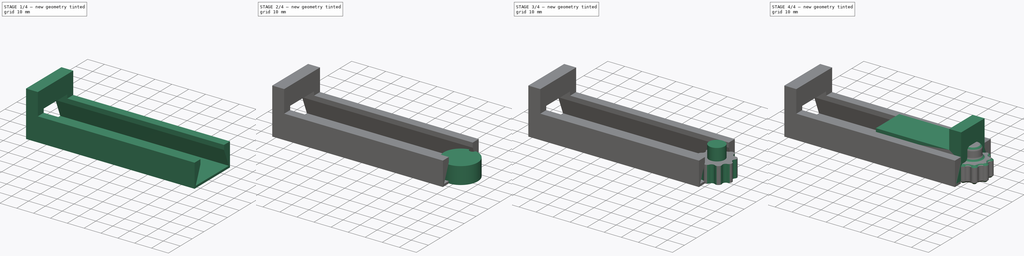
[diagram: build sequence overview — one tinted view per stage of 4, left to right]
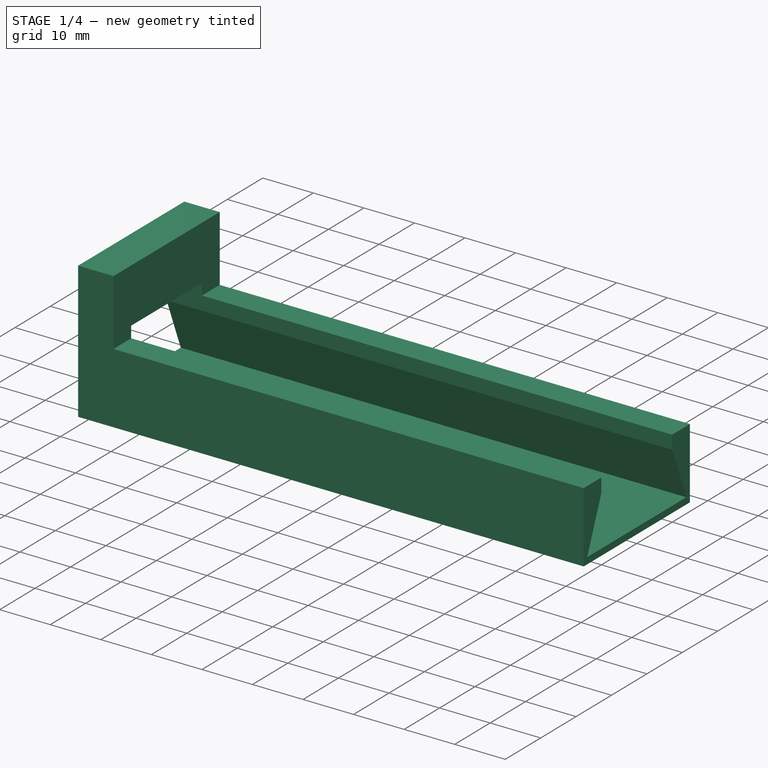
[diagram: stage 1 of 4 — iso view after this stage's code; geometry added in this stage tinted green]
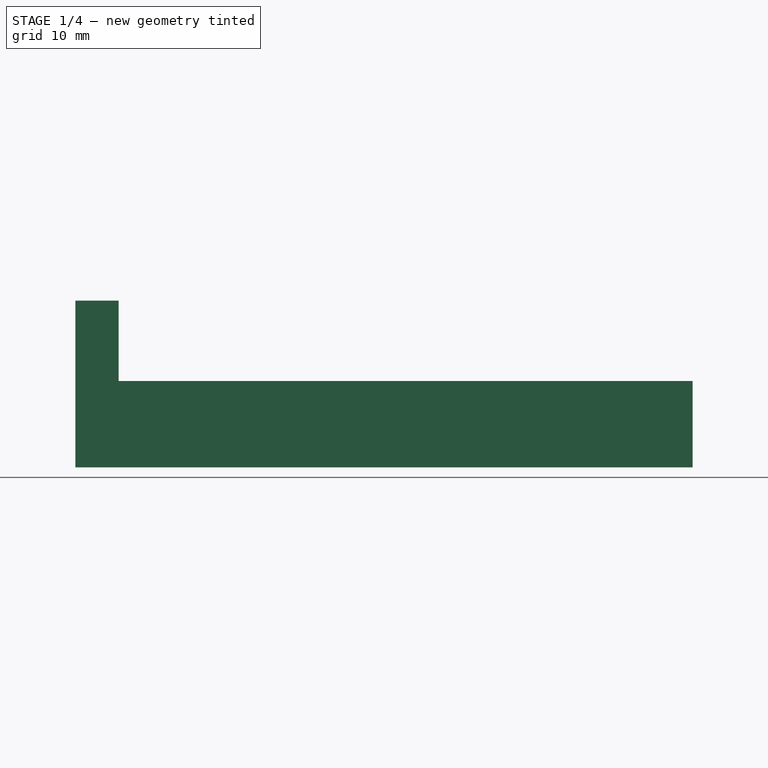
[diagram: stage 1 of 4 — front view after this stage's code; geometry added in this stage tinted green]
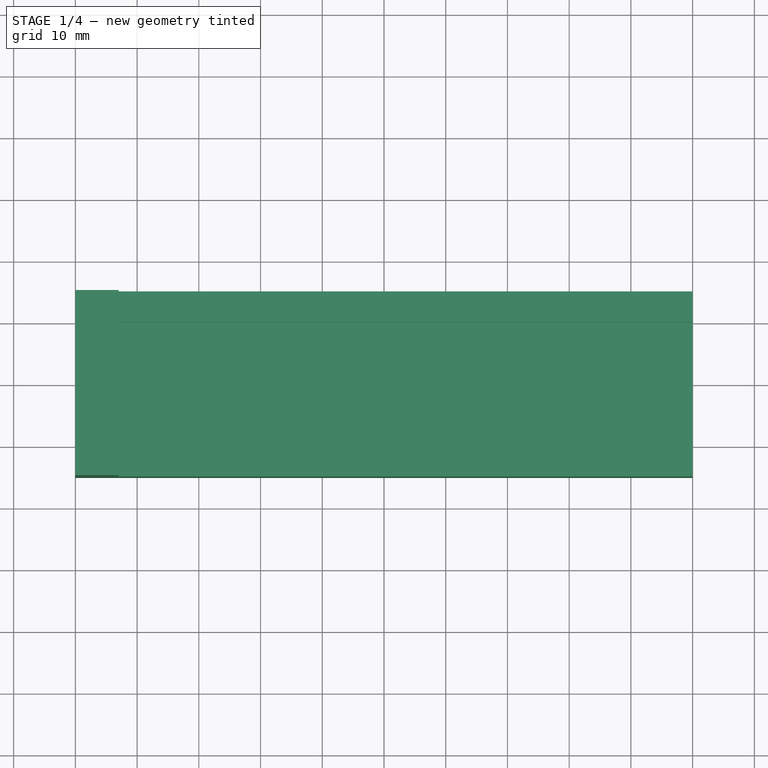
[diagram: stage 1 of 4 — top view after this stage's code; geometry added in this stage tinted green]
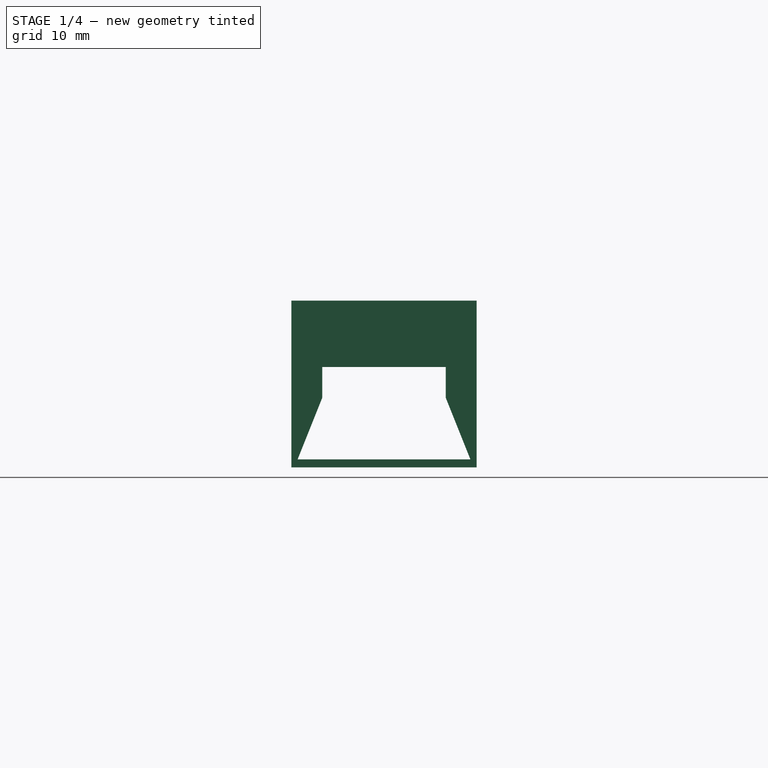
[diagram: stage 1 of 4 — right view after this stage's code; geometry added in this stage tinted green]
FCSTD DOCUMENT  (FreeCAD 1.0R39109 (Git))
Label: USBCPhoneHolder - 04012025
License: All rights reserved
LicenseURL: https://en.wikipedia.org/wiki/All_rights_reserved
objects: Sketcher::SketchObject×7, PartDesign::Pad×7, PartDesign::Body×4, Spreadsheet::Sheet×2, Part::Part2DObjectPython×2, PartDesign::Pocket×2, PartDesign::Fillet×2, App::DocumentObjectGroup×1, PartDesign::Boolean×1, PartDesign::PolarPattern×1, PartDesign::Chamfer×1
note: 60 computed .brp shape members not serialized (recipe doc carries the construction recipe); baked Part::Feature solids carry a one-line shape summary decoded from their .brp

FEATURE [Spreadsheet::Sheet] Spreadsheet001  label="SpreadsheetDimensions"
  cells = A1='Item; B1='Value; A2='PhoneClampWidth; B2(PhoneClampWidth)=100; A3='PhoneClampHeight; B3(PhoneClampHeight)==30 mm; A4='PhoneClampDepth; B4(PhoneClampDepth)==14 mm; A5='USBCClampWidth; B5(USBCClampWidth)==30 mm; A6='USBCClampHeight; B6(USBCClampHeight)==20 mm; A7='USBClampDepth; B7(USBClampDepth)==14 mm; A8='PhoneClampPillarWidth; B8(PhoneClampPillarWidth)=7; A9='MoveSliderWidthHalf; B9(MoveSliderWidthHalf)==10 mm; A10='KnobDiameter; B10(KnobDiameter)==20 mm
FEATURE [Sketcher::SketchObject] Sketch
  ArcFitTolerance = 1e-06
  FullyConstrained = true
  MakeInternals = false
  expr: Constraints[2] = Spreadsheet001.PhoneClampWidth
  expr: Constraints[3] = Spreadsheet001.PhoneClampHeight
  sketch-geometry (7):
    g0: LineSegment StartX=0 StartY=-15 StartZ=0 EndX=0 EndY=15 EndZ=0
    g1: LineSegment StartX=-100 StartY=15 StartZ=0 EndX=-100 EndY=-15 EndZ=0
    g2: LineSegment StartX=-93 StartY=15 StartZ=0 EndX=-93 EndY=-15 EndZ=0
    g3: LineSegment StartX=-100 StartY=15 StartZ=0 EndX=-93 EndY=15 EndZ=0
    g4: LineSegment StartX=-93 StartY=15 StartZ=0 EndX=0 EndY=15 EndZ=0
    g5: LineSegment StartX=-100 StartY=-15 StartZ=0 EndX=-93 EndY=-15 EndZ=0
    g6: LineSegment StartX=-93 StartY=-15 StartZ=0 EndX=0 EndY=-15 EndZ=0
  constraints (19):
    c: Vertical(g0)
    c: Vertical(g1)
    c: DistanceX(g1,g0) = 100
    c: DistanceY(g0,g0) = 30
    c: Symmetric(g0,g0,g-1)
    c: Vertical(g2)
    c: DistanceX(g1,g2) = 7
    c: Coincident(g3,g1)
    c: Coincident(g3,g2)
    c: Horizontal(g3)
    c: Coincident(g4,g2)
    c: Coincident(g4,g0)
    c: Horizontal(g4)
    c: Coincident(g5,g1)
    c: Coincident(g5,g2)
    c: Horizontal(g5)
    c: Coincident(g6,g2)
    c: Coincident(g6,g0)
    c: Horizontal(g6)
FEATURE [PartDesign::Pad] Pad
  Direction = (0,0,1)
  Length = 14
  Length2 = 10
  Profile = -> Sketch [Edge2,Edge5,Edge3,Edge7,Edge4,Edge1]
  ReferenceAxis = -> Sketch [N_Axis]
  Refine = true
  Suppressed = false
  Type = 0
  expr: Length = Spreadsheet001.PhoneClampDepth
FEATURE [PartDesign::Pad] Pad001  label="LeftBody"
  BaseFeature = -> Pad
  Direction = (0,0,1)
  Length = 27.02
  Length2 = 10
  Profile = -> Sketch [Edge6,Edge5,Edge3,Edge4]
  ReferenceAxis = -> Sketch [N_Axis]
  Refine = true
  Suppressed = false
  Type = 0
  expr: Length = Spreadsheet001.PhoneClampDepth * 1.93
FEATURE [Sketcher::SketchObject] Sketch002  label="ProfileStationaryCut"
  ArcFitTolerance = 1e-06
  ExternalGeometry = -> [Pad001]
  FullyConstrained = true
  MakeInternals = false
  MapMode = 5
  Placement = pos=(0,0,0) rot=(0.57735,0.57735,0.57735;2.0944rad)
  sketch-geometry (7):
    g0: LineSegment StartX=-14 StartY=1.29 StartZ=0 EndX=0 EndY=1.29 EndZ=0
    g1: LineSegment StartX=-10 StartY=11.2896 StartZ=0 EndX=-10 EndY=16.2596 EndZ=0
    g2: LineSegment StartX=-10 StartY=16.2596 StartZ=0 EndX=10 EndY=16.2596 EndZ=0
    g3: LineSegment StartX=-10 StartY=11.2896 StartZ=0 EndX=-14 EndY=1.29 EndZ=0
    g4: LineSegment StartX=10 StartY=11.2896 StartZ=0 EndX=10 EndY=16.2596 EndZ=0
    g5: LineSegment StartX=10 StartY=11.2896 StartZ=0 EndX=14 EndY=1.29 EndZ=0
    g6: LineSegment StartX=14 StartY=1.29 StartZ=0 EndX=0 EndY=1.29 EndZ=0
  constraints (21):
    c: Horizontal(g0)
    c: DistanceY(g-1,g0) = 1.29  'OffsetFromBottom'
    c: Vertical(g1)
    c: PointOnObject(g0,g-2)
    c: DistanceX(g0,g0) = 14  'BottomL'
    c: DistanceY(g1,g1) = 4.97  'TopSideL'
    c: Coincident(g2,g1)
    c: Horizontal(g2)
    c: DistanceX(g2,g2) = 20  'TopL'
    c: Distance(g3) = 10.77  'TriangleSide'
    c: Coincident(g1,g3)
    c: Coincident(g3,g0)
    c: DistanceX(g1,g-1) = 10  'DistToCenter'
    c: Horizontal(g6)
    c: Vertical(g4)
    c: Distance(g5) = 10.77
    c: Coincident(g4,g5)
    c: Coincident(g5,g6)
    c: Equal(g1,g4)
    c: Coincident(g4,g2)
    c: Coincident(g6,g0)
FEATURE [Spreadsheet::Sheet] Spreadsheet  label="SpreadsheetConstants"
  cells = A1='Material Tolerance; B1='Value; C1='Descriptor; A2='PLA; B2(PLA)==0.2 mm; C2='For example, if you have a 20mm length and 18mm width item, and you want to fit another item into this, subtract that from the width and height (so 19.8mm and 17.8mm)
FEATURE [Part::Part2DObjectPython] Clone2D  label="ProfileStationaryCut (2D)"  # Draft 2D object (typed FeaturePython)
  Fuse = false
  Objects = -> [Sketch002]
  Placement = pos=(0,0,0) rot=(0.57735,0.57735,0.57735;2.0944rad)
  Scale = (1,1,1)
FEATURE [Sketcher::SketchObject] Sketch003  label="AutoRatio_ProfileMovable"
  ArcFitTolerance = 1e-06
  ExternalGeometry = -> [Pad001]
  FullyConstrained = true
  MakeInternals = false
  MapMode = 5
  Placement = pos=(0,0,0) rot=(0.57735,0.57735,0.57735;2.0944rad)
  expr: Constraints[1] = <<ProfileStationaryCut>>.Constraints.OffsetFromBottom
  expr: Constraints[4] = <<ProfileStationaryCut>>.Constraints.BottomL - Spreadsheet.PLA
  expr: Constraints[5] = <<ProfileStationaryCut>>.Constraints.TopSideL - Spreadsheet.PLA
  expr: Constraints[6] = <<ProfileStationaryCut>>.Constraints.TriangleSide - Spreadsheet.PLA
  expr: Constraints[9] = <<ProfileStationaryCut>>.Constraints.DistToCenter - Spreadsheet.PLA
  sketch-geometry (10):
    g0: LineSegment StartX=-13.8 StartY=1.29 StartZ=0 EndX=0 EndY=1.29 EndZ=0
    g1: LineSegment StartX=-9.8 StartY=11.0739 StartZ=0 EndX=-9.8 EndY=15.8439 EndZ=0
    g2: LineSegment StartX=-9.8 StartY=11.0739 StartZ=0 EndX=-13.8 EndY=1.29 EndZ=0
    g3: LineSegment StartX=9.8 StartY=11.0739 StartZ=0 EndX=9.8 EndY=15.8439 EndZ=0
    g4: LineSegment StartX=9.8 StartY=11.0739 StartZ=0 EndX=13.8 EndY=1.29 EndZ=0
    g5: LineSegment StartX=13.8 StartY=1.29 StartZ=0 EndX=0 EndY=1.29 EndZ=0
    g6: LineSegment StartX=-9.8 StartY=26.9539 StartZ=0 EndX=9.8 EndY=26.9539 EndZ=0
    g7: LineSegment StartX=9.8 StartY=15.8439 StartZ=0 EndX=9.8 EndY=26.9539 EndZ=0
    g8: LineSegment StartX=-9.8 StartY=15.8439 StartZ=0 EndX=-9.8 EndY=26.9539 EndZ=0
    g9: LineSegment StartX=-9.8 StartY=15.8439 StartZ=0 EndX=9.8 EndY=15.8439 EndZ=0
  constraints (29):
    c: Horizontal(g0)
    c: DistanceY(g-1,g0) = 1.29
    c: Vertical(g1)
    c: PointOnObject(g0,g-2)
    c: DistanceX(g0,g0) = 13.8
    c: DistanceY(g1,g1) = 4.77
    c: Distance(g2) = 10.57
    c: Coincident(g1,g2)
    c: Coincident(g2,g0)
    c: DistanceX(g1,g-1) = 9.8
    c: Horizontal(g5)
    c: Vertical(g3)
    c: Coincident(g3,g4)
    c: Coincident(g4,g5)
    c: Equal(g1,g3)
    c: Coincident(g5,g0)
    c: Horizontal(g6)
    c: Coincident(g7,g3)
    c: Coincident(g7,g6)
    c: Vertical(g7)
    c: Coincident(g8,g6)
    c: Vertical(g8)
    c: Equal(g0,g5)
    c: Equal(g8,g7)
    c: Equal(g2,g4)
    c: DistanceY(g8,g8) = 11.11
    c: Coincident(g9,g1)
    c: Coincident(g9,g3)
    c: Coincident(g8,g1)
FEATURE [App::DocumentObjectGroup] Group  label="ProfileTemplates"
  Group = -> [Sketch002,Sketch003]
FEATURE [PartDesign::Pad] Pad002
  Direction = (1,1e-16,-1e-16)
  Length = 100
  Length2 = 10
  Placement = pos=(0,0,0) rot=(0.57735,0.57735,0.57735;2.0944rad)
  Profile = -> Clone2D
  ReferenceAxis = -> Clone2D [N_Axis]
  Refine = true
  Reversed = true
  Suppressed = false
  Type = 0
  expr: Length = Spreadsheet001.PhoneClampWidth
FEATURE [PartDesign::Body] Body001  label="PhoneClampSubtract"
  AllowCompound = false
  Group = -> [Clone2D,Pad002]
  Origin = -> Origin001
  Tip = -> Pad002
FEATURE [PartDesign::Boolean] Boolean
  BaseFeature = -> Pad001
  Group = -> [Body001]
  Refine = true
  Suppressed = false
  Type = 1
  UsePlacement = true
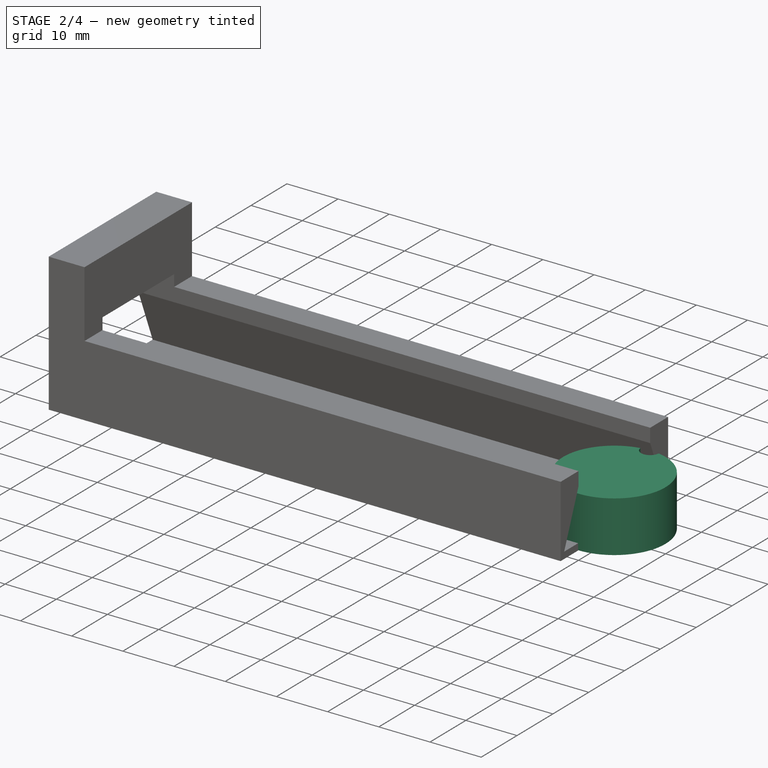
[diagram: stage 2 of 4 — iso view after this stage's code; geometry added in this stage tinted green]
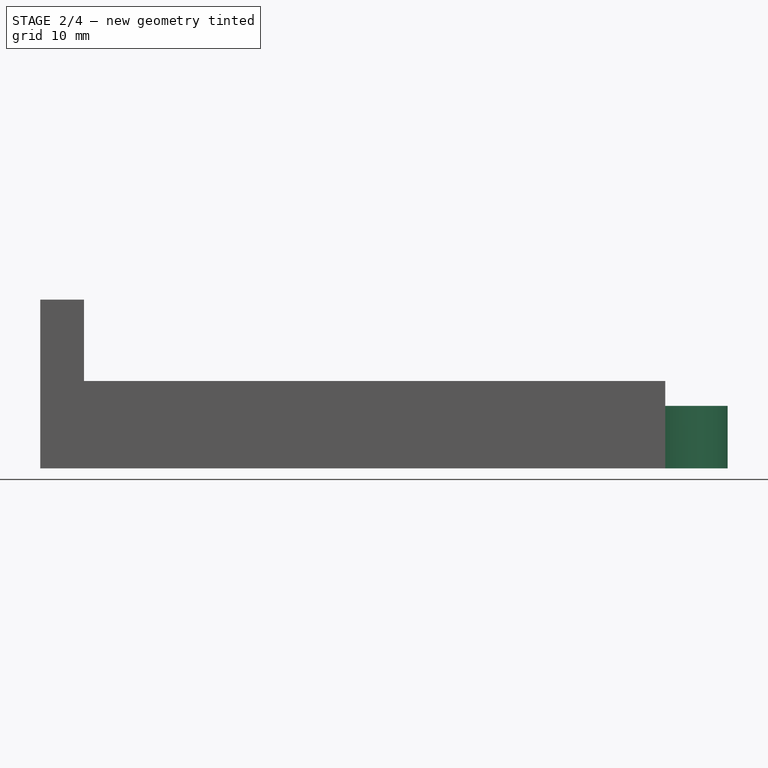
[diagram: stage 2 of 4 — front view after this stage's code; geometry added in this stage tinted green]
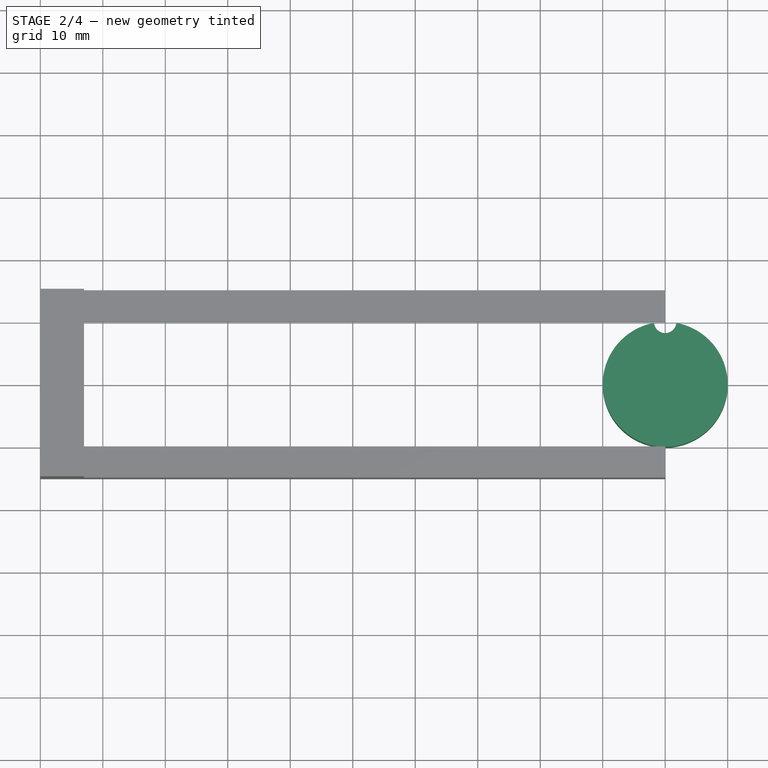
[diagram: stage 2 of 4 — top view after this stage's code; geometry added in this stage tinted green]
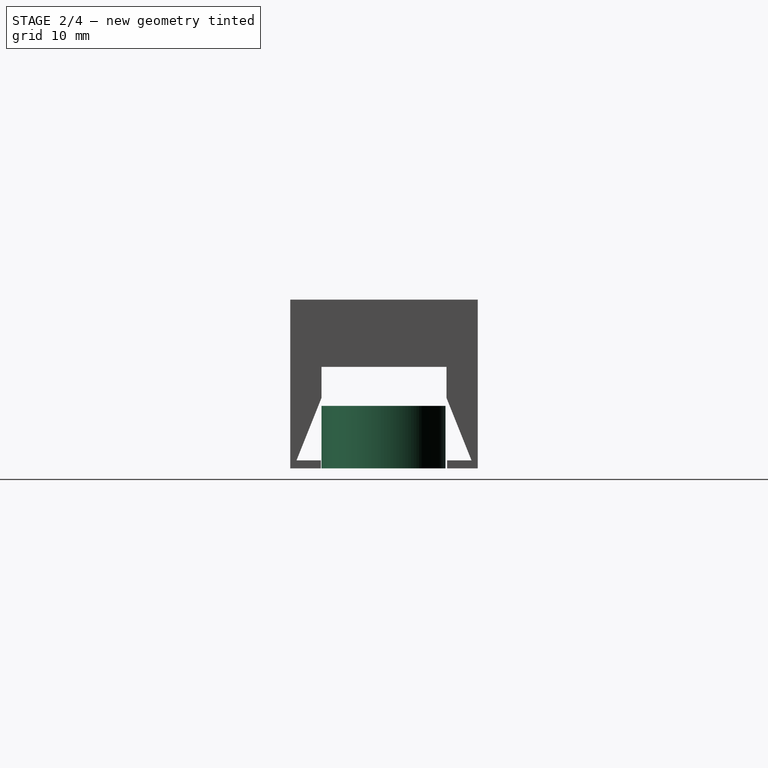
[diagram: stage 2 of 4 — right view after this stage's code; geometry added in this stage tinted green]
FEATURE [PartDesign::Body] Body002  label="PhoneClampMovable"
  AllowCompound = false
  Group = -> [Clone2D001,Pad003,Pad004]
  Origin = -> Origin002
  Tip = -> Pad004
FEATURE [Sketcher::SketchObject] Sketch004
  ArcFitTolerance = 1e-06
  AttachmentSupport = -> [XY_Plane003]
  FullyConstrained = true
  MakeInternals = false
  MapMode = 5
  expr: Constraints[1] = Spreadsheet001.KnobDiameter
  sketch-geometry (1):
    g0: Circle CenterX=0 CenterY=0 CenterZ=0 NormalX=0 NormalY=0 NormalZ=1 AngleXU=0 Radius=10
  constraints (2):
    c: Coincident(g0,g-1)
    c: Diameter(g0) = 20
FEATURE [PartDesign::Pad] Pad005  label="Knob Body Pad"
  Direction = (0,0,1)
  Length = 10
  Length2 = 10
  Profile = -> Sketch004
  ReferenceAxis = -> Sketch004 [N_Axis]
  Refine = true
  Suppressed = false
  Type = 0
FEATURE [Sketcher::SketchObject] Sketch005  label="KnurelCutSketch"
  ArcFitTolerance = 1e-06
  AttachmentSupport = -> [Pad005]
  ExternalGeometry = -> [Pad005]
  FullyConstrained = false
  MakeInternals = false
  MapMode = 5
  Placement = pos=(0,0,10) rot=(0,0,1;0rad)
  expr: Constraints[0] = Spreadsheet001.KnobDiameter * 5 / 28
  sketch-geometry (1):
    g0: Circle CenterX=0 CenterY=10 CenterZ=0 NormalX=0 NormalY=0 NormalZ=1 AngleXU=0 Radius=1.78571
  constraints (2):
    c: Diameter(g0) = 3.57143
    c: PointOnObject(g0,g-3)
FEATURE [PartDesign::Pocket] Pocket  label="KnurelPocket"
  BaseFeature = -> Pad005
  Direction = (0,0,-1)
  Length = 5
  Length2 = 5
  Profile = -> Sketch005
  ReferenceAxis = -> Sketch005 [N_Axis]
  Refine = true
  Suppressed = false
  Type = 1
FEATURE [PartDesign::Body] Body003  label="Knob"
  AllowCompound = false
  Group = -> [Sketch004,Pad005,Sketch005,Pocket,PolarPattern,Sketch006,Pad006,Fillet,Chamfer,Fillet001]
  Origin = -> Origin003
  Tip = -> Fillet001
FEATURE [Sketcher::SketchObject] Sketch007  label="BottomRemoval"
  ArcFitTolerance = 1e-06
  AttachmentSupport = -> [Boolean]
  FullyConstrained = true
  MakeInternals = false
  MapMode = 5
  Placement = pos=(0,0,0) rot=(0.57735,0.57735,0.57735;2.0944rad)
  expr: Constraints[15] = <<ProfileStationaryCut>>.Constraints.OffsetFromBottom
  expr: Constraints[16] = Spreadsheet001.KnobDiameter / 2 + Spreadsheet.PLA / 2
  sketch-geometry (6):
    g0: LineSegment StartX=0 StartY=0 StartZ=0 EndX=-10.1 EndY=0 EndZ=0
    g1: LineSegment StartX=-10.1 StartY=0 StartZ=0 EndX=-10.1 EndY=1.29 EndZ=0
    g2: LineSegment StartX=-10.1 StartY=1.29 StartZ=0 EndX=0 EndY=1.29 EndZ=0
    g3: LineSegment StartX=0 StartY=1.29 StartZ=0 EndX=10.1 EndY=1.29 EndZ=0
    g4: LineSegment StartX=10.1 StartY=1.29 StartZ=0 EndX=10.1 EndY=0 EndZ=0
    g5: LineSegment StartX=10.1 StartY=0 StartZ=0 EndX=0 EndY=0 EndZ=0
  constraints (17):
    c: Coincident(g0,g-1)
    c: PointOnObject(g0,g-1)
    c: Coincident(g1,g0)
    c: Vertical(g1)
    c: Coincident(g2,g1)
    c: PointOnObject(g2,g-2)
    c: Horizontal(g2)
    c: Coincident(g3,g2)
    c: Horizontal(g3)
    c: Coincident(g4,g3)
    c: PointOnObject(g4,g-1)
    c: Vertical(g4)
    c: Coincident(g5,g4)
    c: Coincident(g5,g0)
    c: Equal(g0,g5)
    c: DistanceY(g1,g1) = 1.29
    c: DistanceX(g0,g0) = 10.1
FEATURE [PartDesign::Pocket] Pocket001  label="HoleBottom"
  BaseFeature = -> Boolean
  Direction = (-1,0,0)
  Length = 5
  Length2 = 5
  Profile = -> Sketch007
  ReferenceAxis = -> Sketch007 [N_Axis]
  Refine = true
  Suppressed = false
  Type = 1
FEATURE [PartDesign::Body] Body  label="PhoneClampLeftStationary"
  AllowCompound = false
  Group = -> [Sketch,Pad,Pad001,Boolean,Sketch007,Pocket001]
  Origin = -> Origin
  Tip = -> Pocket001
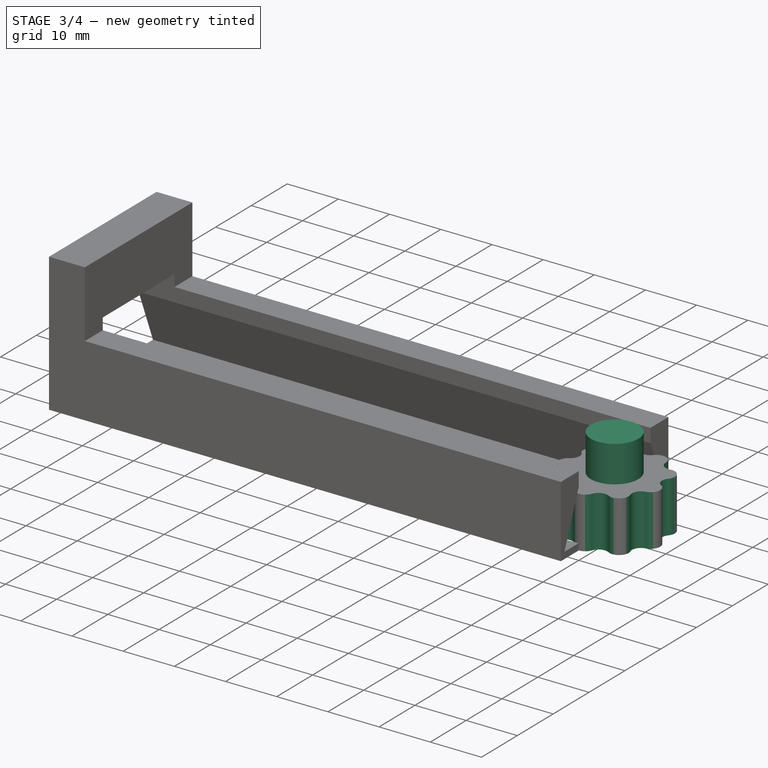
[diagram: stage 3 of 4 — iso view after this stage's code; geometry added in this stage tinted green]
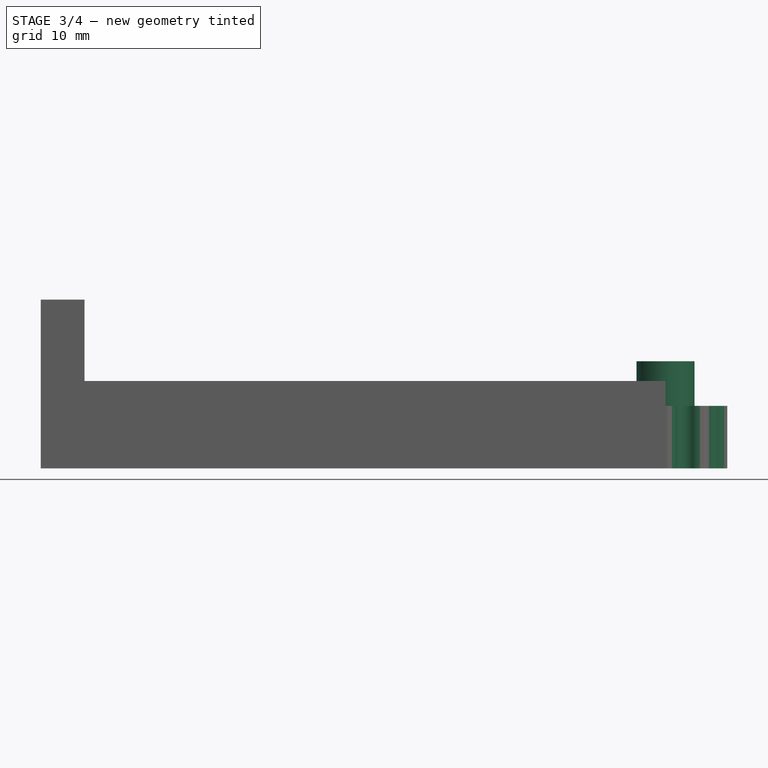
[diagram: stage 3 of 4 — front view after this stage's code; geometry added in this stage tinted green]
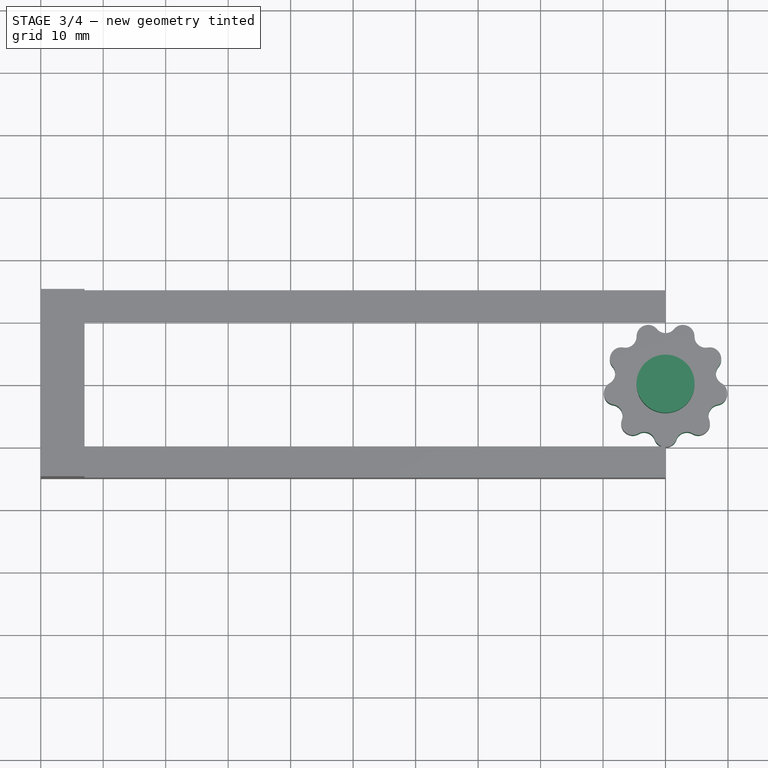
[diagram: stage 3 of 4 — top view after this stage's code; geometry added in this stage tinted green]
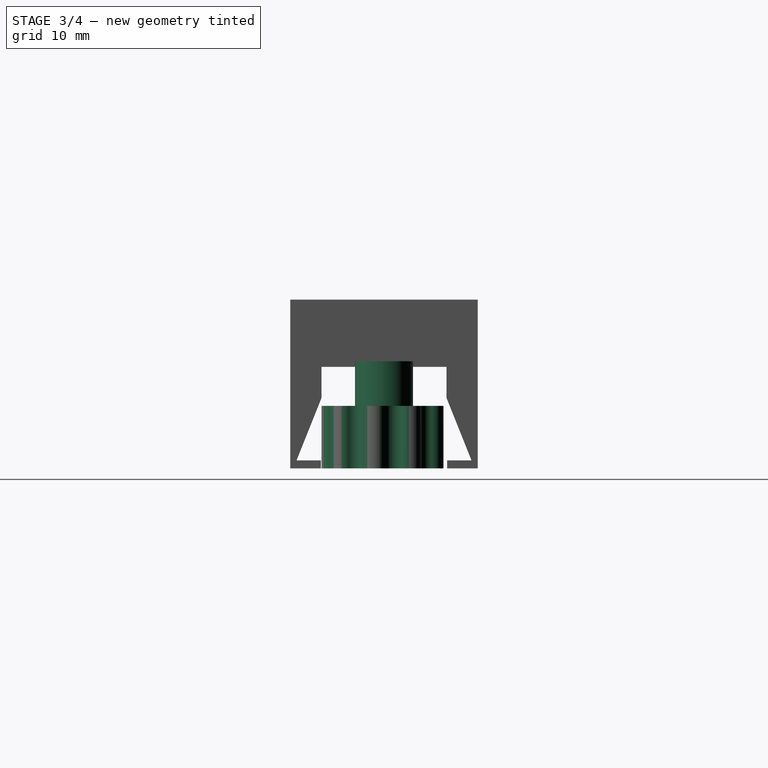
[diagram: stage 3 of 4 — right view after this stage's code; geometry added in this stage tinted green]
FEATURE [PartDesign::PolarPattern] PolarPattern
  Angle = 360
  Axis = -> Sketch005 [N_Axis]
  BaseFeature = -> Pocket
  Mode = 0
  Occurrences = 9
  Offset = 120
  Originals = -> [Pocket]
  Refine = true
  Suppressed = false
  TransformMode = 0
FEATURE [Sketcher::SketchObject] Sketch006  label="Stand off Sketch"
  ArcFitTolerance = 1e-06
  AttachmentSupport = -> [PolarPattern]
  FullyConstrained = true
  MakeInternals = false
  MapMode = 5
  Placement = pos=(0,0,10) rot=(0,0,1;0rad)
  expr: Constraints[1] = Spreadsheet001.KnobDiameter * 13 / 28
  sketch-geometry (1):
    g0: Circle CenterX=0 CenterY=0 CenterZ=0 NormalX=0 NormalY=0 NormalZ=1 AngleXU=0 Radius=4.64286
  constraints (2):
    c: Coincident(g0,g-1)
    c: Diameter(g0) = 9.28571
FEATURE [PartDesign::Pad] Pad006  label="Stand off Pad"
  BaseFeature = -> PolarPattern
  Direction = (0,0,1)
  Length = 7.14286
  Length2 = 10
  Profile = -> Sketch006
  ReferenceAxis = -> Sketch006 [N_Axis]
  Refine = true
  Suppressed = false
  Type = 0
  expr: Length = Spreadsheet001.KnobDiameter * 10 / 28
FEATURE [PartDesign::Fillet] Fillet
  Base = -> Pad006 [Edge33,Edge34,Edge37,Edge38,Edge41,Edge42,Edge45,Edge46,Edge49,Edge50,Edge53,Edge21,Edge20,Edge22,Edge25,Edge26,Edge29,Edge30]
  BaseFeature = -> Pad006
  Radius = 1.8
  Refine = true
  SupportTransform = false
  Suppressed = false
  UseAllEdges = false
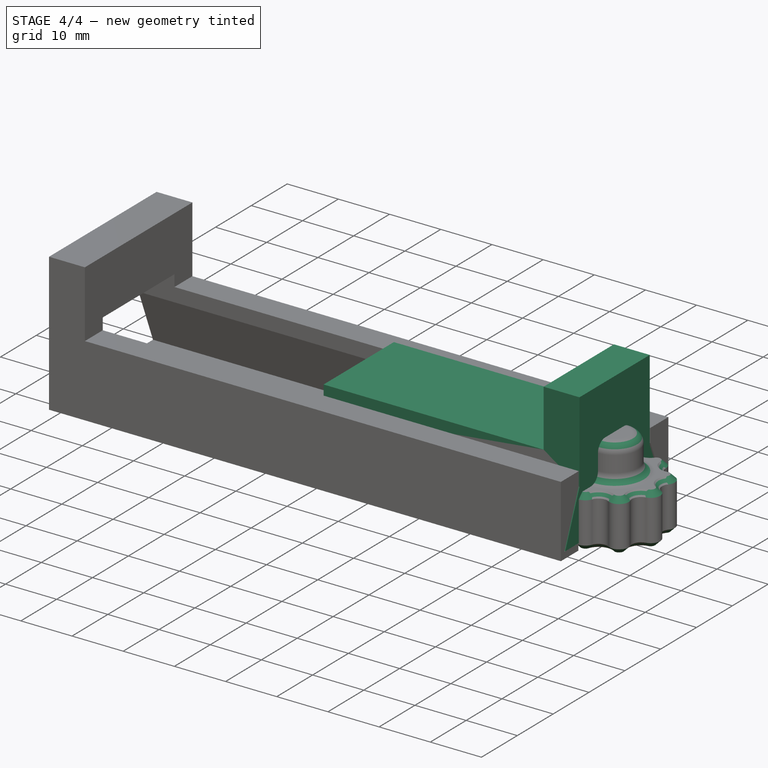
[diagram: stage 4 of 4 — iso view after this stage's code; geometry added in this stage tinted green]
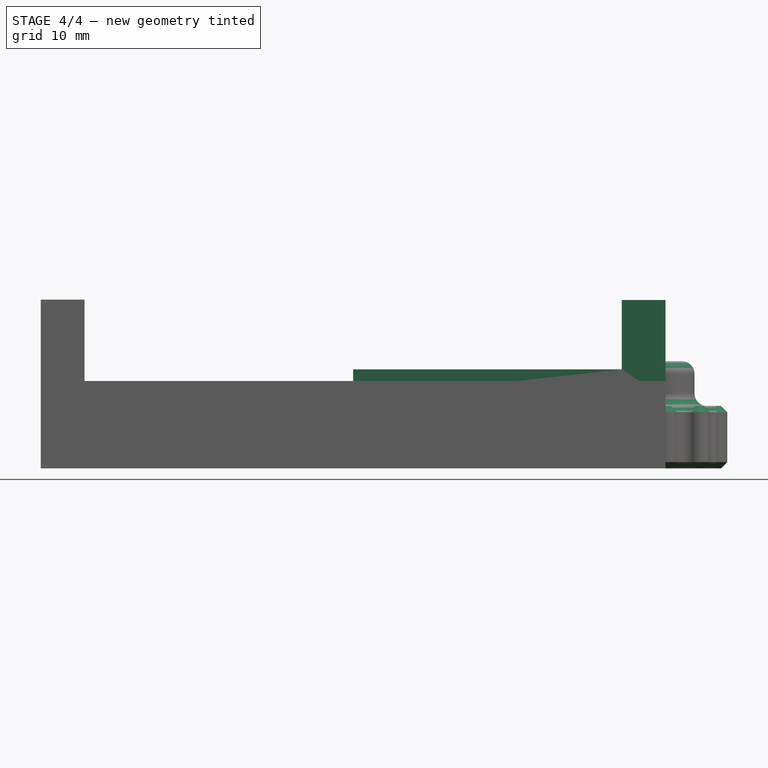
[diagram: stage 4 of 4 — front view after this stage's code; geometry added in this stage tinted green]
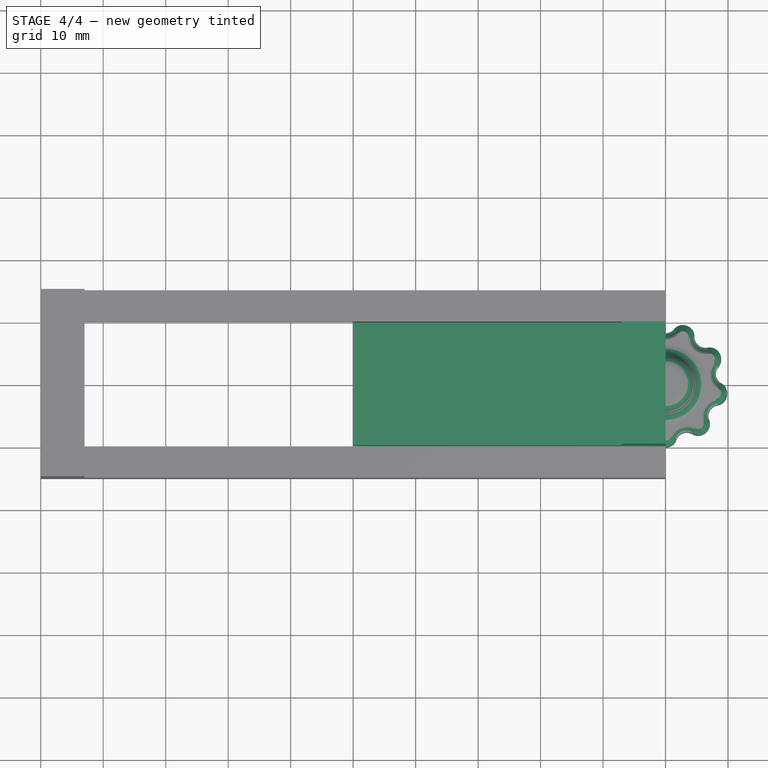
[diagram: stage 4 of 4 — top view after this stage's code; geometry added in this stage tinted green]
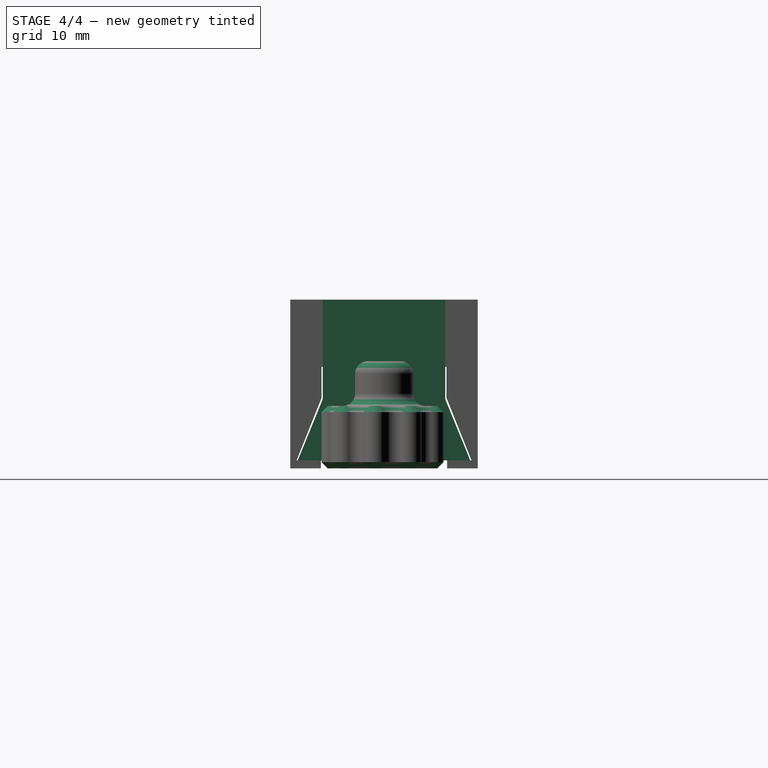
[diagram: stage 4 of 4 — right view after this stage's code; geometry added in this stage tinted green]
FEATURE [Part::Part2DObjectPython] Clone2D001  label="AutoRatio_ProfileMovable (2D)"  # Draft 2D object (typed FeaturePython)
  Fuse = false
  Objects = -> [Sketch003]
  Placement = pos=(0,0,0) rot=(0.57735,0.57735,0.57735;2.0944rad)
  Scale = (1,1,1)
FEATURE [PartDesign::Pad] Pad003
  Direction = (1,1e-16,-1e-16)
  Length = 50
  Length2 = 10
  Placement = pos=(0,0,0) rot=(0.57735,0.57735,0.57735;2.0944rad)
  Profile = -> Clone2D001 [Edge10,Edge1,Edge2,Edge3,Edge4,Edge5,Edge6]
  ReferenceAxis = -> Clone2D001 [N_Axis]
  Refine = true
  Reversed = true
  Suppressed = false
  Type = 0
  expr: Length = Spreadsheet001.PhoneClampWidth / 2
FEATURE [PartDesign::Pad] Pad004
  BaseFeature = -> Pad003
  Direction = (1,1e-16,-1e-16)
  Length = 7
  Length2 = 10
  Placement = pos=(0,0,0) rot=(0.57735,0.57735,0.57735;2.0944rad)
  Profile = -> Clone2D001 [Edge10,Edge9,Edge8,Edge7]
  ReferenceAxis = -> Clone2D001 [N_Axis]
  Refine = true
  Reversed = true
  Suppressed = false
  Type = 0
  expr: Length = Spreadsheet001.PhoneClampDepth / 2
FEATURE [PartDesign::Chamfer] Chamfer
  Angle = 45
  Base = -> Fillet [Edge16,Edge37]
  BaseFeature = -> Fillet
  ChamferType = 0
  FlipDirection = false
  Refine = true
  Size = 1
  Size2 = 1
  SupportTransform = false
  Suppressed = false
  UseAllEdges = false
FEATURE [PartDesign::Fillet] Fillet001
  Base = -> Chamfer [Edge253,Edge255]
  BaseFeature = -> Chamfer
  Radius = 2
  Refine = true
  SupportTransform = false
  Suppressed = false
  UseAllEdges = false
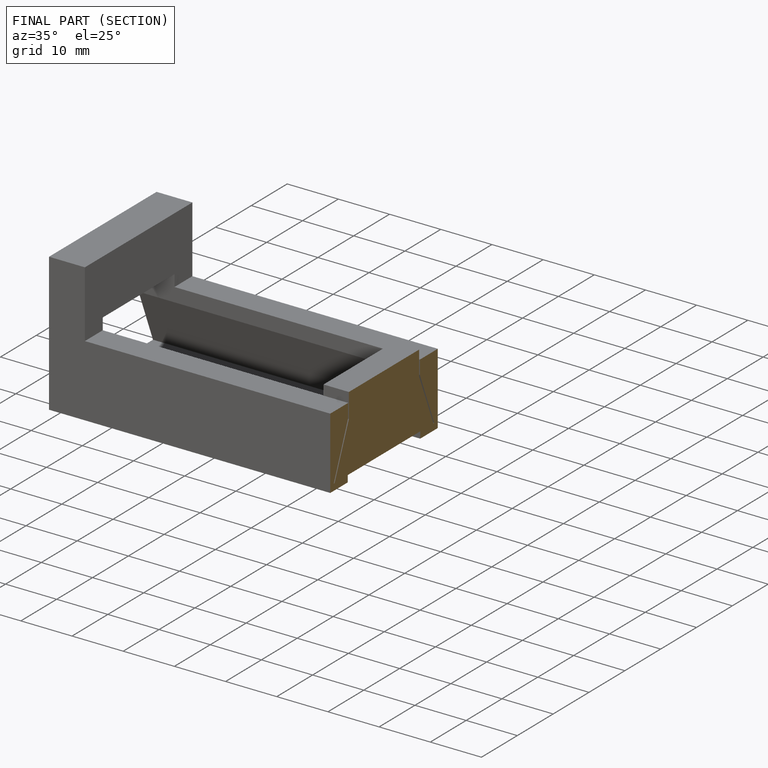
[diagram: finished part — half-section view (interior)]
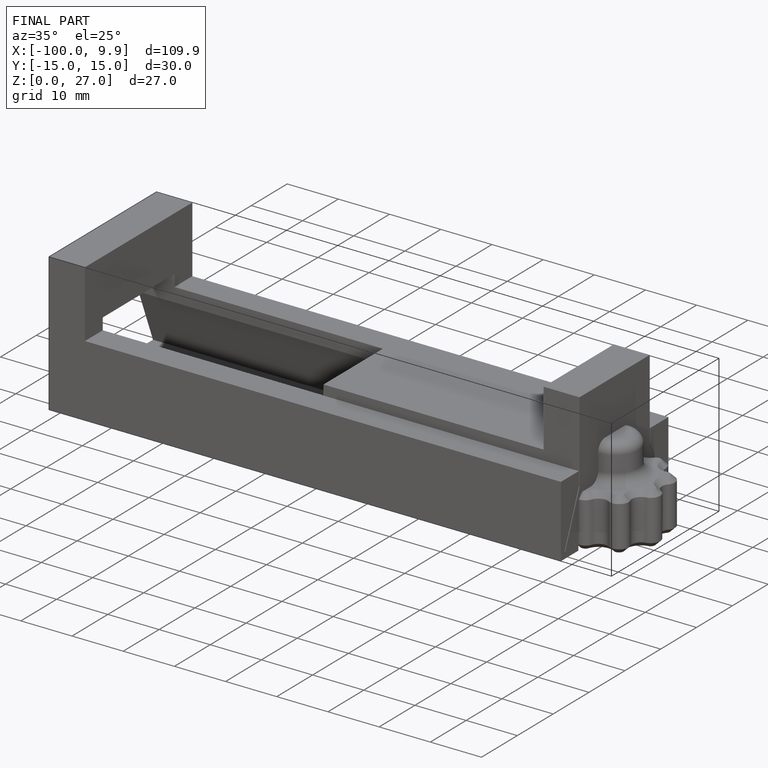
[diagram: finished part — iso view with bounding-box wireframe]
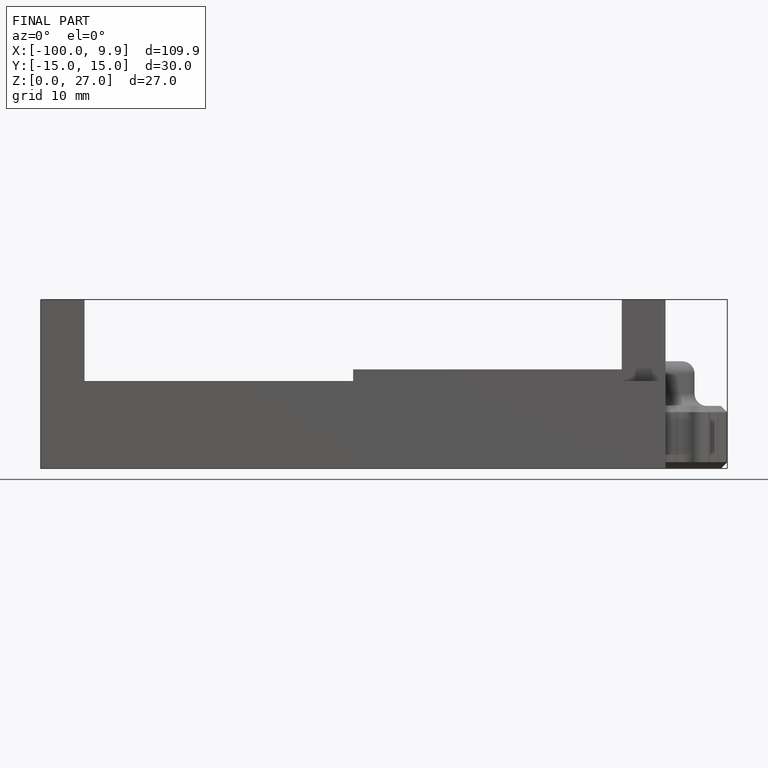
[diagram: finished part — front view with bounding-box wireframe]
